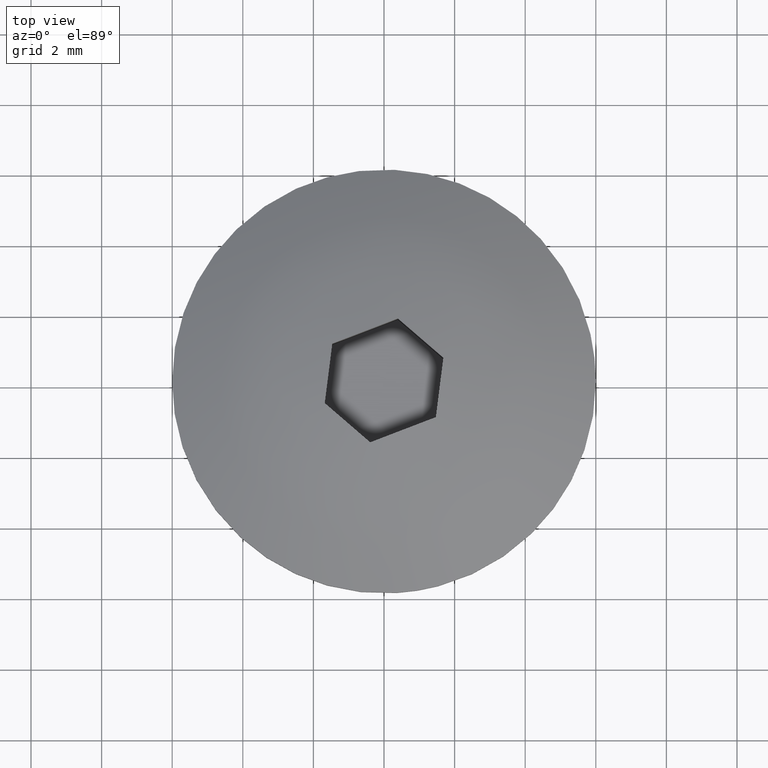
[diagram: clean part render]
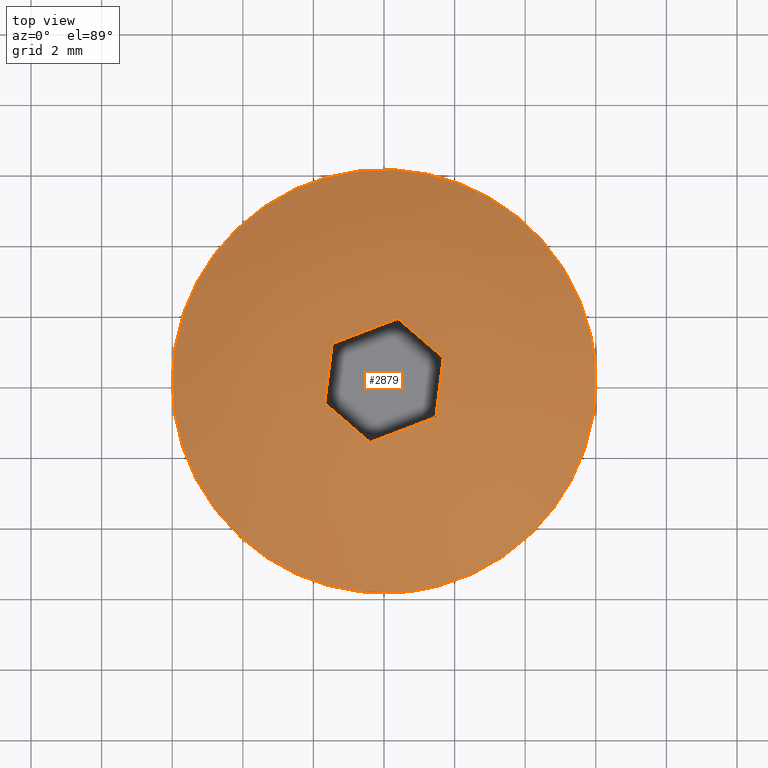
[diagram: same view with one face highlighted and labeled with its STEP entity id]
A machine part, top view. The second image highlights one B-rep face of the part: STEP entity #2879.
In plain terms, the highlighted face is a freeform B-spline surface patch.
Its self-contained STEP definition (entity closure, byte-faithful):
#327=CARTESIAN_POINT('',(-0.708201660671828,5.958057603599299,6.856408000000100));
#328=VERTEX_POINT('',#327);
#334=CARTESIAN_POINT('',(6.0,0.0,6.856408000000100));
#335=VERTEX_POINT('',#334);
#336=CARTESIAN_POINT('',(-0.708201660671828,5.958057603599301,6.856408000000100));
#337=CARTESIAN_POINT('',(-0.355342824469453,6.0,6.856408000000099));
#338=CARTESIAN_POINT('',(0.0,6.0,6.856408000000100));
#339=CARTESIAN_POINT('',(6.0,6.0,6.856408000000100));
#340=CARTESIAN_POINT('',(6.0,0.0,6.856408000000100));
#348=(BOUNDED_CURVE()B_SPLINE_CURVE(2,(#336,#337,#338,#339,#340),.UNSPECIFIED.,.F.,.U.)B_SPLINE_CURVE_WITH_KNOTS((3,2,3),(0.229562579808786,0.250000000000000,0.500000000000000),.UNSPECIFIED.)CURVE()GEOMETRIC_REPRESENTATION_ITEM()RATIONAL_B_SPLINE_CURVE((0.956026962526900,0.976056072863809,1.0,0.707106781186548,1.0))REPRESENTATION_ITEM(''));
#349=EDGE_CURVE('',#328,#335,#348,.T.);
#351=CARTESIAN_POINT('',(0.366289120546966,-5.988808919991055,6.856408000000100));
#352=VERTEX_POINT('',#351);
#353=CARTESIAN_POINT('',(6.0,0.0,6.856408000000100));
#354=CARTESIAN_POINT('',(6.000000000000001,-5.644238400040059,6.856408000000101));
#355=CARTESIAN_POINT('',(0.366289120546966,-5.988808919991055,6.856408000000100));
#363=(BOUNDED_CURVE()B_SPLINE_CURVE(2,(#353,#354,#355),.UNSPECIFIED.,.F.,.U.)B_SPLINE_CURVE_WITH_KNOTS((3,3),(0.500000000000000,0.739333023226263),.UNSPECIFIED.)CURVE()GEOMETRIC_REPRESENTATION_ITEM()RATIONAL_B_SPLINE_CURVE((1.0,0.719603921835620,0.976072172374189))REPRESENTATION_ITEM(''));
#364=EDGE_CURVE('',#335,#352,#363,.T.);
#438=CARTESIAN_POINT('',(-6.0,0.0,6.856408000000100));
#439=VERTEX_POINT('',#438);
#440=CARTESIAN_POINT('',(0.366289120546966,-5.988808919991055,6.856408000000100));
#441=CARTESIAN_POINT('',(0.183315518493018,-6.0,6.856408000000099));
#442=CARTESIAN_POINT('',(0.0,-6.0,6.856408000000100));
#443=CARTESIAN_POINT('',(-6.0,-6.0,6.856408000000100));
#444=CARTESIAN_POINT('',(-6.0,0.0,6.856408000000100));
#452=(BOUNDED_CURVE()B_SPLINE_CURVE(2,(#440,#441,#442,#443,#444),.UNSPECIFIED.,.F.,.U.)B_SPLINE_CURVE_WITH_KNOTS((3,2,3),(0.739333023226263,0.750000000000000,1.0),.UNSPECIFIED.)CURVE()GEOMETRIC_REPRESENTATION_ITEM()RATIONAL_B_SPLINE_CURVE((0.976072172374189,0.987502859350927,1.0,0.707106781186548,1.0))REPRESENTATION_ITEM(''));
#453=EDGE_CURVE('',#352,#439,#452,.T.);
#455=CARTESIAN_POINT('',(-6.0,0.0,6.856408000000100));
#456=CARTESIAN_POINT('',(-6.000000000000001,5.329050530961814,6.856408000000102));
#457=CARTESIAN_POINT('',(-0.708201660671828,5.958057603599301,6.856408000000100));
#465=(BOUNDED_CURVE()B_SPLINE_CURVE(2,(#455,#456,#457),.UNSPECIFIED.,.F.,.U.)B_SPLINE_CURVE_WITH_KNOTS((3,3),(0.0,0.229562579808786),.UNSPECIFIED.)CURVE()GEOMETRIC_REPRESENTATION_ITEM()RATIONAL_B_SPLINE_CURVE((1.0,0.731050708322738,0.956026962526900))REPRESENTATION_ITEM(''));
#466=EDGE_CURVE('',#439,#328,#465,.T.);
#2636=CARTESIAN_POINT('',(0.391351514890982,1.756935112544535,8.321213684144770));
#2637=VERTEX_POINT('',#2636);
#2644=CARTESIAN_POINT('',(1.680447567678500,0.645055355959406,8.321212700407541));
#2645=VERTEX_POINT('',#2644);
#2651=CARTESIAN_POINT('',(0.391351514890982,1.756935112544536,8.321213684144766));
#2652=CARTESIAN_POINT('',(1.035899567893069,1.200995211301578,8.382020857809506));
#2653=CARTESIAN_POINT('',(1.680447567678500,0.645055355959406,8.321212700407530));
#2661=(BOUNDED_CURVE()B_SPLINE_CURVE(2,(#2651,#2652,#2653),.UNSPECIFIED.,.F.,.U.)CURVE()GEOMETRIC_REPRESENTATION_ITEM()QUASI_UNIFORM_CURVE()RATIONAL_B_SPLINE_CURVE((1.0,0.997457956108573,1.0))REPRESENTATION_ITEM(''));
#2662=EDGE_CURVE('',#2637,#2645,#2661,.T.);
#2672=CARTESIAN_POINT('',(-1.466449976411210,1.043791635455000,8.321213704553720));
#2673=VERTEX_POINT('',#2672);
#2681=CARTESIAN_POINT('',(-1.466449976411210,1.043791635455001,8.321213704553706));
#2682=CARTESIAN_POINT('',(-0.537549229964552,1.400363374305157,8.404303614123528));
#2683=CARTESIAN_POINT('',(0.391351514890980,1.756935112544538,8.321213684144762));
#2691=(BOUNDED_CURVE()B_SPLINE_CURVE(2,(#2681,#2682,#2683),.UNSPECIFIED.,.F.,.U.)CURVE()GEOMETRIC_REPRESENTATION_ITEM()QUASI_UNIFORM_CURVE()RATIONAL_B_SPLINE_CURVE((1.0,0.996531295953860,1.0))REPRESENTATION_ITEM(''));
#2692=EDGE_CURVE('',#2673,#2637,#2691,.T.);
#2702=CARTESIAN_POINT('',(-1.680441785928090,-0.645069735965360,8.321212737328709));
#2703=VERTEX_POINT('',#2702);
#2711=CARTESIAN_POINT('',(-1.680441785928090,-0.645069735965360,8.321212737328700));
#2712=CARTESIAN_POINT('',(-1.573445885512530,0.199360915470041,8.382020886328268));
#2713=CARTESIAN_POINT('',(-1.466449976411211,1.043791635454998,8.321213704553708));
#2721=(BOUNDED_CURVE()B_SPLINE_CURVE(2,(#2711,#2712,#2713),.UNSPECIFIED.,.F.,.U.)CURVE()GEOMETRIC_REPRESENTATION_ITEM()QUASI_UNIFORM_CURVE()RATIONAL_B_SPLINE_CURVE((1.0,0.997457956120757,1.0))REPRESENTATION_ITEM(''));
#2722=EDGE_CURVE('',#2703,#2673,#2721,.T.);
#2732=CARTESIAN_POINT('',(-0.391345733140572,-1.756949492550490,8.321211753591399));
#2733=VERTEX_POINT('',#2732);
#2741=CARTESIAN_POINT('',(-0.391345733140573,-1.756949492550489,8.321211753591385));
#2742=CARTESIAN_POINT('',(-1.035893732925999,-1.201009637208322,8.382019915825511));
#2743=CARTESIAN_POINT('',(-1.680441785928090,-0.645069735965360,8.321212737328699));
#2751=(BOUNDED_CURVE()B_SPLINE_CURVE(2,(#2741,#2742,#2743),.UNSPECIFIED.,.F.,.U.)CURVE()GEOMETRIC_REPRESENTATION_ITEM()QUASI_UNIFORM_CURVE()RATIONAL_B_SPLINE_CURVE((1.0,0.997457955706102,1.0))REPRESENTATION_ITEM(''));
#2752=EDGE_CURVE('',#2733,#2703,#2751,.T.);
#2762=CARTESIAN_POINT('',(1.466455758161620,-1.043806015460952,8.321211733182452));
#2763=VERTEX_POINT('',#2762);
#2771=CARTESIAN_POINT('',(1.466455758161619,-1.043806015460952,8.321211733182452));
#2772=CARTESIAN_POINT('',(0.537555013306086,-1.400377753700333,8.404301676766590));
#2773=CARTESIAN_POINT('',(-0.391345733140572,-1.756949492550489,8.321211753591397));
#2781=(BOUNDED_CURVE()B_SPLINE_CURVE(2,(#2771,#2772,#2773),.UNSPECIFIED.,.F.,.U.)CURVE()GEOMETRIC_REPRESENTATION_ITEM()QUASI_UNIFORM_CURVE()RATIONAL_B_SPLINE_CURVE((1.0,0.996531294823813,1.0))REPRESENTATION_ITEM(''));
#2782=EDGE_CURVE('',#2763,#2733,#2781,.T.);
#2795=CARTESIAN_POINT('',(1.680447567678499,0.645055355959405,8.321212700407525));
#2796=CARTESIAN_POINT('',(1.573451658577180,-0.199375364025555,8.382019887306745));
#2797=CARTESIAN_POINT('',(1.466455758161621,-1.043806015460951,8.321211733182436));
#2805=(BOUNDED_CURVE()B_SPLINE_CURVE(2,(#2795,#2796,#2797),.UNSPECIFIED.,.F.,.U.)CURVE()GEOMETRIC_REPRESENTATION_ITEM()QUASI_UNIFORM_CURVE()RATIONAL_B_SPLINE_CURVE((1.0,0.997457955693917,1.0))REPRESENTATION_ITEM(''));
#2806=EDGE_CURVE('',#2645,#2763,#2805,.T.);
#2841=CARTESIAN_POINT('',(-6.031030229815275,-6.030896716707195,4.918605732233662));
#2842=CARTESIAN_POINT('',(-3.254387340963412,-6.508630712246930,6.547428057268657));
#2843=CARTESIAN_POINT('',(3.254387232671756,-6.508630712246930,6.547427987826365));
#2844=CARTESIAN_POINT('',(6.031029898079276,-6.030896805034774,4.918605904693925));
#2845=CARTESIAN_POINT('',(-6.508751945181742,-3.254303940349936,6.547350208584904));
#2846=CARTESIAN_POINT('',(-3.534346107835948,-3.534267949872869,8.456411033216623));
#2847=CARTESIAN_POINT('',(3.534346012347561,-3.534267949872869,8.456410957800555));
#2848=CARTESIAN_POINT('',(6.508751615086489,-3.254303991787306,6.547350420449704));
#2849=CARTESIAN_POINT('',(-6.508751945181743,3.254321929656452,6.547350216856392));
#2850=CARTESIAN_POINT('',(-3.534346107835948,3.534287484143792,8.456411042199697));
#2851=CARTESIAN_POINT('',(3.534346012347561,3.534287484143792,8.456410966783631));
#2852=CARTESIAN_POINT('',(6.508751615086489,3.254321981094106,6.547350428721195));
#2853=CARTESIAN_POINT('',(-6.031025328893857,6.030925179895530,4.918589038360374));
#2854=CARTESIAN_POINT('',(-3.254384486902877,6.508661008734869,6.547408612542378));
#2855=CARTESIAN_POINT('',(3.254384378611091,6.508661008734869,6.547408543100143));
#2856=CARTESIAN_POINT('',(6.031024997157843,6.030925268223448,4.918589210820245));
#2864=(BOUNDED_SURFACE()B_SPLINE_SURFACE(2,2,((#2841,#2845,#2849,#2853),(#2842,#2846,#2850,#2854),(#2843,#2847,#2851,#2855),(#2844,#2848,#2852,#2856)),.UNSPECIFIED.,.F.,.F.,.U.)B_SPLINE_SURFACE_WITH_KNOTS((3,1,3),(3,1,3),(1.356053590774536,8.009983898134758,14.663913541650770),(1.356201005584002,8.009983898134758,14.663803624504810),.UNSPECIFIED.)GEOMETRIC_REPRESENTATION_ITEM()RATIONAL_B_SPLINE_SURFACE(((1.172053877529599,1.086028844673741,1.086028844673741,1.172054829962023),(1.086025032855858,1.0,1.0,1.086025985288283),(1.086025032855858,1.0,1.0,1.086025985288283),(1.172053860363880,1.086028827508022,1.086028827508022,1.172054812796305)))REPRESENTATION_ITEM('')SURFACE());
#2865=ORIENTED_EDGE('',*,*,#349,.F.);
#2866=ORIENTED_EDGE('',*,*,#466,.F.);
#2867=ORIENTED_EDGE('',*,*,#453,.F.);
#2868=ORIENTED_EDGE('',*,*,#364,.F.);
#2869=EDGE_LOOP('',(#2865,#2866,#2867,#2868));
#2870=FACE_OUTER_BOUND('',#2869,.T.);
#2871=ORIENTED_EDGE('',*,*,#2662,.T.);
#2872=ORIENTED_EDGE('',*,*,#2806,.T.);
#2873=ORIENTED_EDGE('',*,*,#2782,.T.);
#2874=ORIENTED_EDGE('',*,*,#2752,.T.);
#2875=ORIENTED_EDGE('',*,*,#2722,.T.);
#2876=ORIENTED_EDGE('',*,*,#2692,.T.);
#2877=EDGE_LOOP('',(#2871,#2872,#2873,#2874,#2875,#2876));
#2878=FACE_BOUND('',#2877,.T.);
#2879=ADVANCED_FACE('',(#2870,#2878),#2864,.T.);